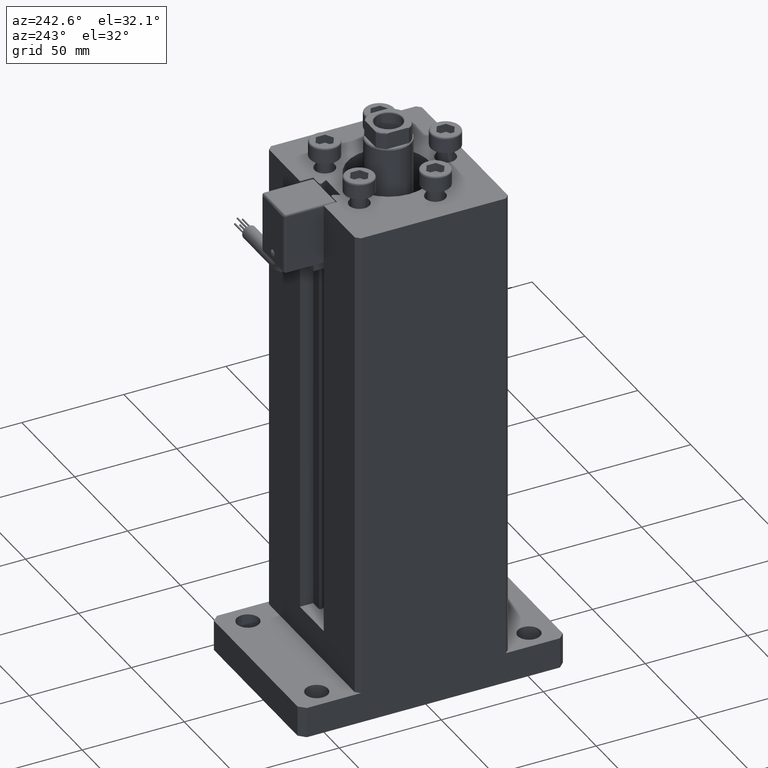
[diagram: clean part render]
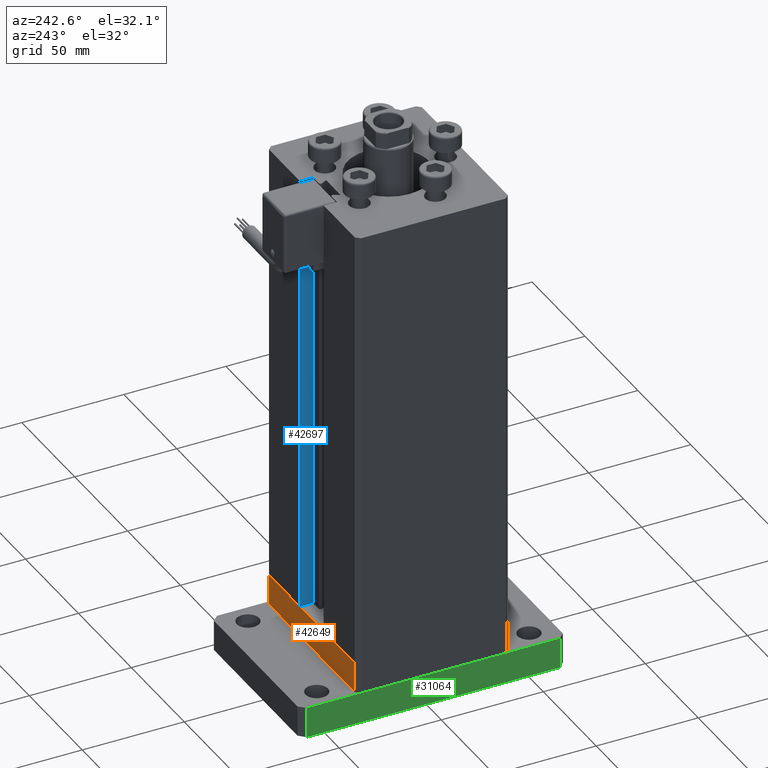
[diagram: same view with three faces highlighted in distinct colors, each labeled with its STEP entity id]
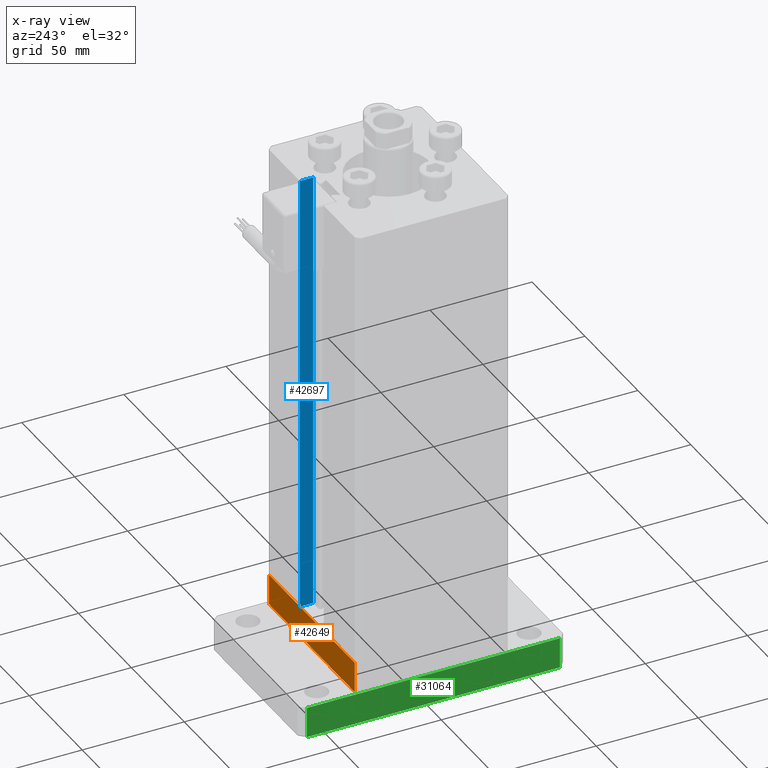
[diagram: x-ray of the same camera — body ghosted, the three highlighted faces saturated]
A machine part, auxiliary view with three faces highlighted in distinct colors.
The next image is the same camera in x-ray (body ghosted, the three faces saturated) — at least one of them is partly hidden behind the body in this view.
Their STEP definitions:

[orange] entity #42649 — the highlighted planar face has unit normal (0, 1, 0).
#141 = VECTOR ( 'NONE', #53395, 1000.000000000000000 ) ;
#181 = VECTOR ( 'NONE', #32617, 1000.000000000000000 ) ;
#321 = DIRECTION ( 'NONE',  ( -3.426614273534436165E-16, 1.000000000000000000, 0.000000000000000000 ) ) ;
#1306 = EDGE_LOOP ( 'NONE', ( #52736, #33816, #3626, #29102 ) ) ;
#2276 = EDGE_CURVE ( 'NONE', #14614, #24705, #19515, .T. ) ;
#3315 = EDGE_CURVE ( 'NONE', #24705, #25862, #32053, .T. ) ;
#3626 = ORIENTED_EDGE ( 'NONE', *, *, #2276, .T. ) ;
#4163 = CARTESIAN_POINT ( 'NONE',  ( -40.50000000000000711, 37.49999999999997868, 0.000000000000000000 ) ) ;
#6694 = CARTESIAN_POINT ( 'NONE',  ( 40.49999999999991473, 37.50000000000000711, -15.00000000000000000 ) ) ;
#9433 = CARTESIAN_POINT ( 'NONE',  ( 40.49999999999991473, 37.50000000000000711, -15.00000000000000000 ) ) ;
#9842 = EDGE_CURVE ( 'NONE', #14614, #31566, #49443, .T. ) ;
#12483 = CARTESIAN_POINT ( 'NONE',  ( -40.50000000000000711, 37.49999999999997868, -15.00000000000000000 ) ) ;
#14614 = VERTEX_POINT ( 'NONE', #29178 ) ;
#14711 = DIRECTION ( 'NONE',  ( 0.000000000000000000, 0.000000000000000000, 1.000000000000000000 ) ) ;
#19515 = LINE ( 'NONE', #6694, #141 ) ;
#24705 = VERTEX_POINT ( 'NONE', #12483 ) ;
#24929 = DIRECTION ( 'NONE',  ( -1.000000000000000000, -3.426614273534436165E-16, 0.000000000000000000 ) ) ;
#25862 = VERTEX_POINT ( 'NONE', #4163 ) ;
#25998 = EDGE_CURVE ( 'NONE', #31566, #25862, #33473, .T. ) ;
#29102 = ORIENTED_EDGE ( 'NONE', *, *, #3315, .T. ) ;
#29178 = CARTESIAN_POINT ( 'NONE',  ( 40.49999999999991473, 37.50000000000000711, -15.00000000000000000 ) ) ;
#31566 = VERTEX_POINT ( 'NONE', #32130 ) ;
#32053 = LINE ( 'NONE', #49694, #181 ) ;
#32130 = CARTESIAN_POINT ( 'NONE',  ( 40.49999999999991473, 37.50000000000000711, 0.000000000000000000 ) ) ;
#32617 = DIRECTION ( 'NONE',  ( 0.000000000000000000, 0.000000000000000000, 1.000000000000000000 ) ) ;
#33473 = LINE ( 'NONE', #38026, #33776 ) ;
#33776 = VECTOR ( 'NONE', #24929, 1000.000000000000000 ) ;
#33816 = ORIENTED_EDGE ( 'NONE', *, *, #9842, .F. ) ;
#35073 = FACE_OUTER_BOUND ( 'NONE', #1306, .T. ) ;
#38026 = CARTESIAN_POINT ( 'NONE',  ( 40.49999999999991473, 37.50000000000000711, 0.000000000000000000 ) ) ;
#39346 = PLANE ( 'NONE',  #49722 ) ;
#42649 = ADVANCED_FACE ( 'NONE', ( #35073 ), #39346, .T. ) ;
#49443 = LINE ( 'NONE', #53700, #53892 ) ;
#49694 = CARTESIAN_POINT ( 'NONE',  ( -40.50000000000000711, 37.49999999999997868, -15.00000000000000000 ) ) ;
#49722 = AXIS2_PLACEMENT_3D ( 'NONE', #9433, #321, #52432 ) ;
#52432 = DIRECTION ( 'NONE',  ( -1.000000000000000000, -3.426614273534436165E-16, 0.000000000000000000 ) ) ;
#52736 = ORIENTED_EDGE ( 'NONE', *, *, #25998, .F. ) ;
#53395 = DIRECTION ( 'NONE',  ( -1.000000000000000000, -3.426614273534436165E-16, 0.000000000000000000 ) ) ;
#53700 = CARTESIAN_POINT ( 'NONE',  ( 40.49999999999991473, 37.50000000000000711, -15.00000000000000000 ) ) ;
#53892 = VECTOR ( 'NONE', #14711, 1000.000000000000000 ) ;

[blue] entity #42697 — the highlighted planar face has unit normal (1, 0, 0).
#1240 = DIRECTION ( 'NONE',  ( -0.000000000000000000, -0.000000000000000000, 1.000000000000000000 ) ) ;
#2592 = CARTESIAN_POINT ( 'NONE',  ( 11.25000000000000000, 30.99999999999999289, 0.000000000000000000 ) ) ;
#4835 = VECTOR ( 'NONE', #11742, 1000.000000000000000 ) ;
#7682 = VERTEX_POINT ( 'NONE', #15990 ) ;
#7925 = AXIS2_PLACEMENT_3D ( 'NONE', #12860, #52147, #47312 ) ;
#9870 = EDGE_LOOP ( 'NONE', ( #47321, #55266, #37303, #43651 ) ) ;
#11742 = DIRECTION ( 'NONE',  ( -0.000000000000000000, -1.000000000000000000, 0.000000000000000000 ) ) ;
#12860 = CARTESIAN_POINT ( 'NONE',  ( 11.25000000000000000, 30.99999999999999289, 0.000000000000000000 ) ) ;
#15990 = CARTESIAN_POINT ( 'NONE',  ( 11.25000000000000000, 30.99999999999999289, 218.5000000000000000 ) ) ;
#17698 = PLANE ( 'NONE',  #7925 ) ;
#19173 = LINE ( 'NONE', #40263, #54534 ) ;
#19959 = DIRECTION ( 'NONE',  ( -0.000000000000000000, -0.000000000000000000, 1.000000000000000000 ) ) ;
#20654 = EDGE_CURVE ( 'NONE', #48843, #30393, #19173, .T. ) ;
#22953 = EDGE_CURVE ( 'NONE', #23471, #48843, #30714, .T. ) ;
#23471 = VERTEX_POINT ( 'NONE', #44189 ) ;
#24246 = LINE ( 'NONE', #2592, #51936 ) ;
#24402 = EDGE_CURVE ( 'NONE', #23471, #7682, #24246, .T. ) ;
#24603 = VECTOR ( 'NONE', #40070, 1000.000000000000000 ) ;
#25399 = LINE ( 'NONE', #50736, #4835 ) ;
#30109 = EDGE_CURVE ( 'NONE', #30393, #7682, #25399, .T. ) ;
#30393 = VERTEX_POINT ( 'NONE', #32467 ) ;
#30714 = LINE ( 'NONE', #39246, #24603 ) ;
#32467 = CARTESIAN_POINT ( 'NONE',  ( 11.24999999999999289, 37.50000000000000000, 218.5000000000000000 ) ) ;
#37303 = ORIENTED_EDGE ( 'NONE', *, *, #24402, .T. ) ;
#39246 = CARTESIAN_POINT ( 'NONE',  ( 11.25000000000000000, 30.99999999999999289, 0.000000000000000000 ) ) ;
#40070 = DIRECTION ( 'NONE',  ( 0.000000000000000000, 1.000000000000000000, 0.000000000000000000 ) ) ;
#40263 = CARTESIAN_POINT ( 'NONE',  ( 11.25000000000000000, 37.50000000000000000, 0.000000000000000000 ) ) ;
#42697 = ADVANCED_FACE ( 'NONE', ( #56125 ), #17698, .F. ) ;
#43651 = ORIENTED_EDGE ( 'NONE', *, *, #30109, .F. ) ;
#44189 = CARTESIAN_POINT ( 'NONE',  ( 11.25000000000000000, 30.99999999999999289, 0.000000000000000000 ) ) ;
#47312 = DIRECTION ( 'NONE',  ( 0.000000000000000000, 0.000000000000000000, -1.000000000000000000 ) ) ;
#47321 = ORIENTED_EDGE ( 'NONE', *, *, #20654, .F. ) ;
#48843 = VERTEX_POINT ( 'NONE', #50038 ) ;
#50038 = CARTESIAN_POINT ( 'NONE',  ( 11.25000000000000000, 37.50000000000000000, 0.000000000000000000 ) ) ;
#50736 = CARTESIAN_POINT ( 'NONE',  ( 11.25000000000000000, 0.000000000000000000, 218.5000000000000000 ) ) ;
#51936 = VECTOR ( 'NONE', #19959, 1000.000000000000000 ) ;
#52147 = DIRECTION ( 'NONE',  ( 1.000000000000000000, -0.000000000000000000, 0.000000000000000000 ) ) ;
#54534 = VECTOR ( 'NONE', #1240, 1000.000000000000000 ) ;
#55266 = ORIENTED_EDGE ( 'NONE', *, *, #22953, .F. ) ;
#56125 = FACE_OUTER_BOUND ( 'NONE', #9870, .T. ) ;

[green] entity #31064 — the highlighted planar face has unit normal (1, 0, 0).
#796 = CARTESIAN_POINT ( 'NONE',  ( -42.50000000000002132, 62.00000000000000711, 15.00000000000000000 ) ) ;
#1238 = VERTEX_POINT ( 'NONE', #27142 ) ;
#1285 = LINE ( 'NONE', #40868, #50345 ) ;
#1754 = CARTESIAN_POINT ( 'NONE',  ( -42.50000000000002132, 62.00000000000000711, 15.00000000000000000 ) ) ;
#7448 = LINE ( 'NONE', #1754, #24738 ) ;
#7697 = EDGE_CURVE ( 'NONE', #42812, #53667, #7448, .T. ) ;
#8317 = PLANE ( 'NONE',  #13971 ) ;
#10261 = CARTESIAN_POINT ( 'NONE',  ( -42.50000000000002132, 62.00000000000000711, 15.00000000000000000 ) ) ;
#10907 = EDGE_LOOP ( 'NONE', ( #38365, #38764, #45839, #21673 ) ) ;
#11185 = LINE ( 'NONE', #54724, #51328 ) ;
#13971 = AXIS2_PLACEMENT_3D ( 'NONE', #56131, #21423, #35346 ) ;
#14091 = VERTEX_POINT ( 'NONE', #34686 ) ;
#16545 = EDGE_CURVE ( 'NONE', #42812, #14091, #30728, .T. ) ;
#21423 = DIRECTION ( 'NONE',  ( 1.000000000000000000, 2.238352872228137677E-16, -0.000000000000000000 ) ) ;
#21673 = ORIENTED_EDGE ( 'NONE', *, *, #16545, .T. ) ;
#24122 = VECTOR ( 'NONE', #35529, 1000.000000000000000 ) ;
#24738 = VECTOR ( 'NONE', #53843, 1000.000000000000000 ) ;
#27142 = CARTESIAN_POINT ( 'NONE',  ( -42.49999999999999289, -62.00000000000001421, 0.000000000000000000 ) ) ;
#30728 = LINE ( 'NONE', #796, #24122 ) ;
#31064 = ADVANCED_FACE ( 'NONE', ( #51861 ), #8317, .F. ) ;
#34686 = CARTESIAN_POINT ( 'NONE',  ( -42.50000000000002132, 62.00000000000000711, 0.000000000000000000 ) ) ;
#35346 = DIRECTION ( 'NONE',  ( -2.238352872228137677E-16, 1.000000000000000000, 0.000000000000000000 ) ) ;
#35529 = DIRECTION ( 'NONE',  ( -0.000000000000000000, -0.000000000000000000, -1.000000000000000000 ) ) ;
#35750 = DIRECTION ( 'NONE',  ( -0.000000000000000000, -0.000000000000000000, -1.000000000000000000 ) ) ;
#37382 = DIRECTION ( 'NONE',  ( 2.238352872228137677E-16, -1.000000000000000000, 0.000000000000000000 ) ) ;
#38365 = ORIENTED_EDGE ( 'NONE', *, *, #55079, .T. ) ;
#38764 = ORIENTED_EDGE ( 'NONE', *, *, #53855, .F. ) ;
#40449 = CARTESIAN_POINT ( 'NONE',  ( -42.49999999999999289, -62.00000000000001421, 15.00000000000000000 ) ) ;
#40868 = CARTESIAN_POINT ( 'NONE',  ( -42.49999999999999289, -62.00000000000001421, 15.00000000000000000 ) ) ;
#42812 = VERTEX_POINT ( 'NONE', #10261 ) ;
#45839 = ORIENTED_EDGE ( 'NONE', *, *, #7697, .F. ) ;
#50345 = VECTOR ( 'NONE', #35750, 1000.000000000000000 ) ;
#51328 = VECTOR ( 'NONE', #37382, 1000.000000000000000 ) ;
#51861 = FACE_OUTER_BOUND ( 'NONE', #10907, .T. ) ;
#53667 = VERTEX_POINT ( 'NONE', #40449 ) ;
#53843 = DIRECTION ( 'NONE',  ( 2.238352872228137677E-16, -1.000000000000000000, 0.000000000000000000 ) ) ;
#53855 = EDGE_CURVE ( 'NONE', #53667, #1238, #1285, .T. ) ;
#54724 = CARTESIAN_POINT ( 'NONE',  ( -42.50000000000002132, 62.00000000000000711, 0.000000000000000000 ) ) ;
#55079 = EDGE_CURVE ( 'NONE', #14091, #1238, #11185, .T. ) ;
#56131 = CARTESIAN_POINT ( 'NONE',  ( -42.50000000000002132, 62.00000000000000711, 15.00000000000000000 ) ) ;